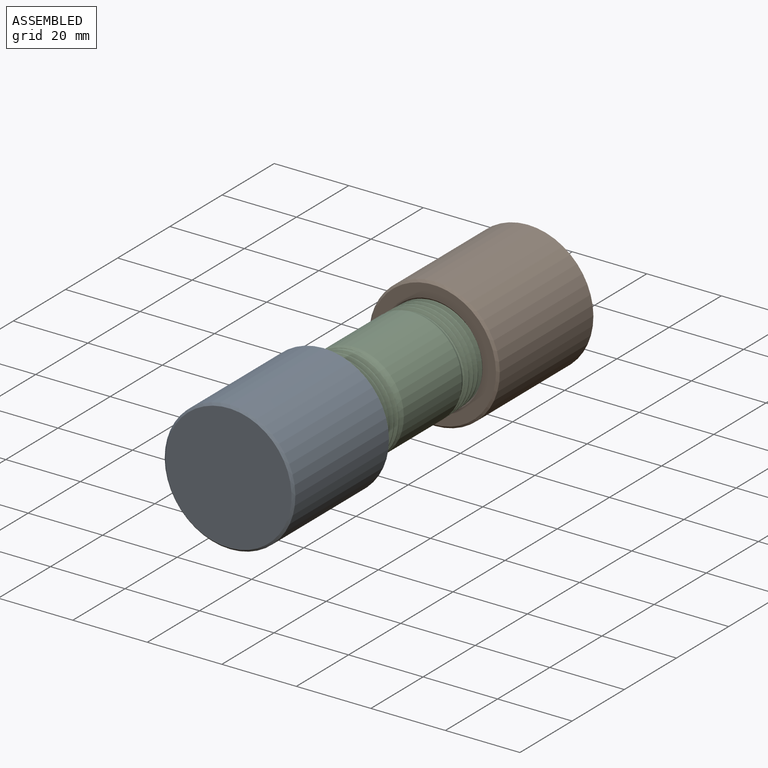
[diagram: assembled view]
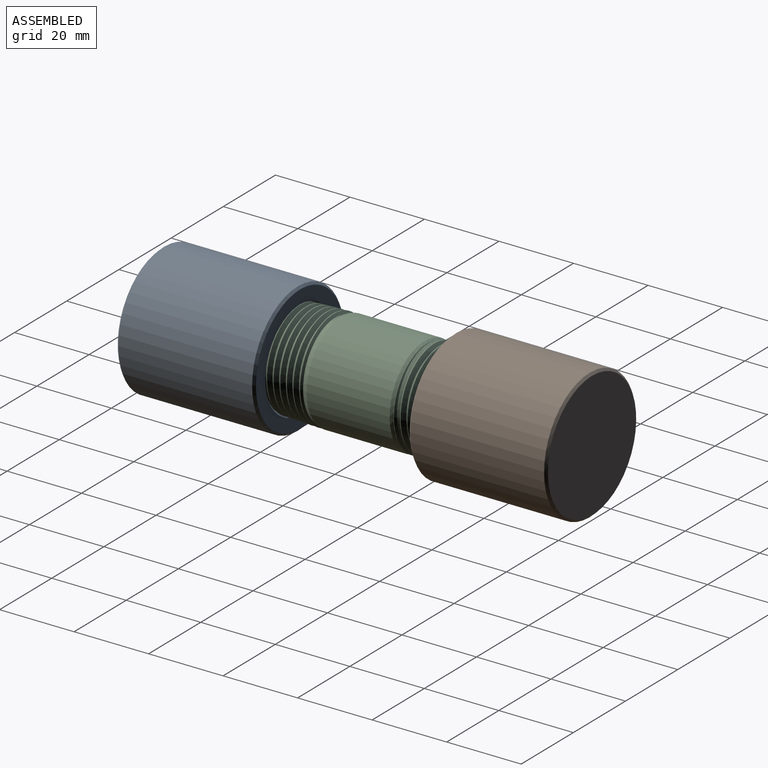
[diagram: assembled view, second angle]
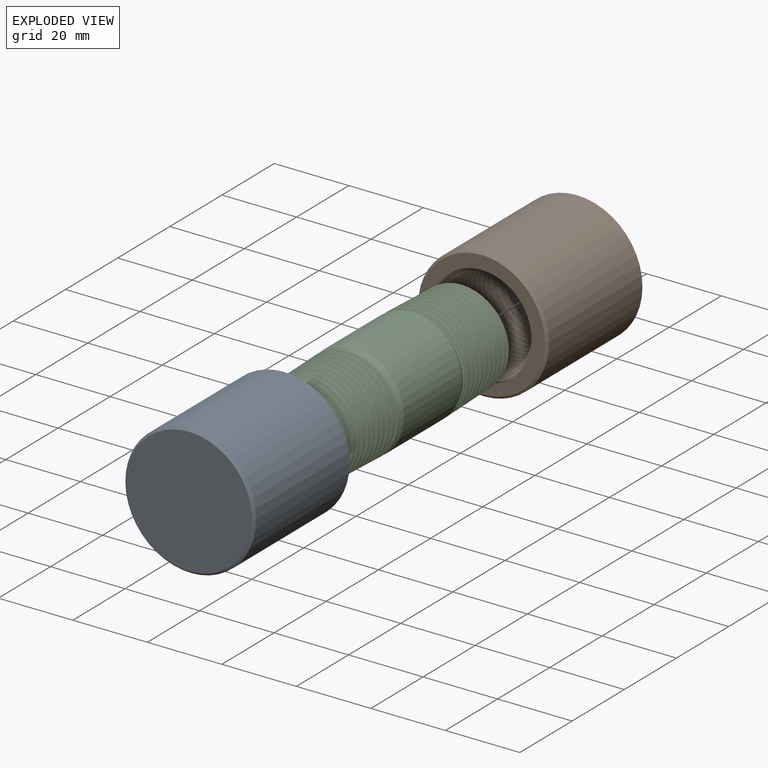
[diagram: exploded view]
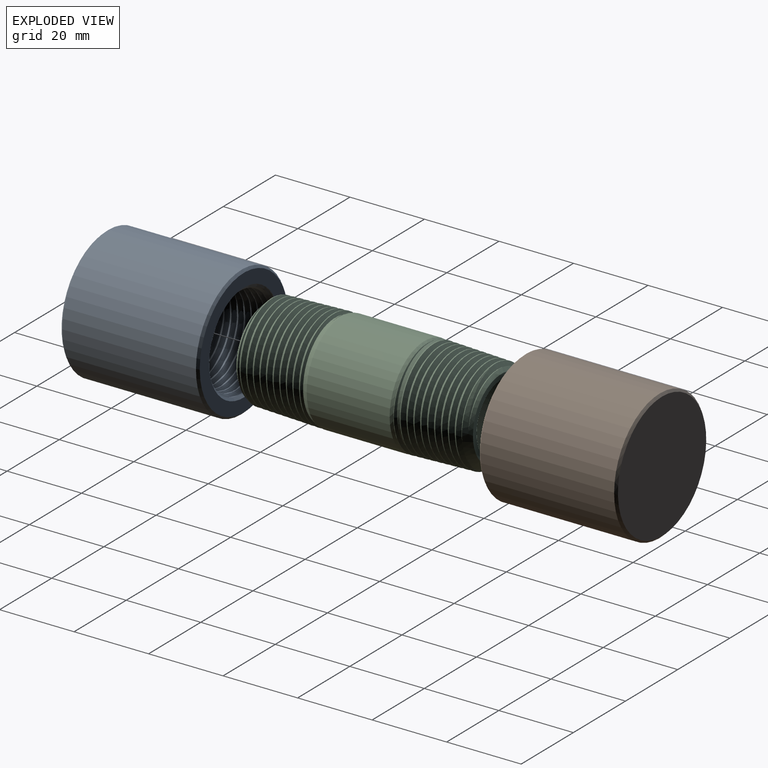
[diagram: exploded view, second angle]
ASSEMBLY  parts=3 mates=4
PART A: 14 faces, bbox 35.1x37.9x35.1 mm
  f0: cylinder r=10.64mm len=21.27mm, axis (0,1,0), area 121.2mm2, adj f1,f13
  f1: cone r=10.64mm half-angle=45deg, axis (0,-1,0), area 131.4mm2, adj f0,f6,f7,f8,f9,f10
  f2: cone r=16.92mm half-angle=45deg, axis (0,1,0), area 92.6mm2, adj f5,f11
  f3: cone r=17.53mm half-angle=45deg, axis (0,-1,0), area 92.6mm2, adj f5,f12
  f4: cone r=13.33mm half-angle=45deg, axis (0,-1,0), area 70.1mm2, adj f7,f8,f9,f10,f11
  f5: cylinder r=17.53mm len=35.87mm, axis (0,-1,0), area 3950.5mm2, adj f2,f3
  f6: cone r=12.45mm half-angle=1.5deg, axis (0,-1,0), area 253.8mm2, adj f1,f7,f9,f11
  f7: bspline ~30.39x26.94mm, area 34.4mm2, adj f1,f4,f6,f10
  f8: bspline ~30.77x24.51mm, area 277.1mm2, adj f1,f4,f9,f10
  f9: bspline ~35.07x33.18mm, area 2996.8mm2, adj f1,f4,f6,f8
  f10: bspline ~31.5x26.89mm, area 1747.1mm2, adj f1,f4,f7,f8
  f11: plane 33.84x33.84mm, normal (0,-1,0), area 340.9mm2, adj f2,f4,f6
  f12: plane 33.84x33.84mm, normal (0,1,0), area 899.5mm2, adj f3
  f13: plane 21.27x21.27mm, normal (0,-1,0), area 355.4mm2, adj f0
PART B: same geometry as A
PART C: 18 faces, bbox 63.6x27.5x27.5 mm
  f0: cylinder r=9.42mm len=63.5mm, axis (1,0,0), area 3759.8mm2, adj f13,f17
  f1: cone r=13.33mm half-angle=25deg, axis (1,0,0), area 132.3mm2, adj f4,f5,f14,f15,f16
  f2: cone r=10.83mm half-angle=46.8deg, axis (1,0,0), area 134mm2, adj f3,f14,f15,f16,f17
  f3: cone r=13.33mm half-angle=1.8deg, axis (1,0,0), area 187.6mm2, adj f2,f4,f14,f15
  f4: cone r=12.67mm half-angle=45deg, axis (-1,0,0), area 9.7mm2, adj f1,f3,f14,f15
  f5: cylinder r=13.33mm len=26.67mm, axis (1,0,0), area 1867mm2, adj f1,f6
  f6: cone r=13.33mm half-angle=25deg, axis (-1,0,0), area 132.3mm2, adj f5,f9,f10,f11,f12
  f7: cone r=10.83mm half-angle=46.8deg, axis (-1,0,0), area 134mm2, adj f8,f10,f11,f12,f13
  f8: cone r=13.33mm half-angle=1.8deg, axis (-1,0,0), area 187.6mm2, adj f7,f9,f10,f11
  f9: cone r=12.67mm half-angle=45deg, axis (1,0,0), area 9.7mm2, adj f6,f8,f10,f11
  f10: bspline ~27.55x27.49mm, area 1053mm2, adj f6,f7,f8,f9,f12
  f11: bspline ~26.48x26.44mm, area 3.5mm2, adj f6,f7,f8,f9,f12
  f12: bspline ~23.76x23.62mm, area 160.7mm2, adj f6,f7,f10,f11
  f13: plane 21.67x21.67mm, normal (1,0,0), area 89.8mm2, adj f0,f7
  f14: bspline ~27.55x27.49mm, area 1053mm2, adj f1,f2,f3,f4,f16
  f15: bspline ~26.48x26.44mm, area 3.5mm2, adj f1,f2,f3,f4,f16
  f16: bspline ~23.76x23.62mm, area 160.7mm2, adj f1,f2,f14,f15
  f17: plane 21.67x21.67mm, normal (-1,0,0), area 89.8mm2, adj f0,f2
PLACE A rot(axis=(-0.48,0,-0.88),180deg) t=(9.45,-16.73,11.97)mm
PLACE B rot(axis=(0,1,0),146.8deg) t=(9.45,24.54,11.97)mm
PLACE C rot(axis=(0.58,0.58,0.58),120deg) t=(9.45,5.49,11.97)mm fixed
MATE cylindrical B.f0 <-> C.f0  axis (0,-1,0) through (9.45,25.14,11.97)mm
MATE planar A.f0 <-> C.f0  axis (0,1,0) through (9.45,-16.73,11.97)mm
MATE cylindrical C.f0 <-> A.f0  axis (0,1,0) through (9.45,-4.81,11.97)mm
MATE planar B.f0 <-> C.f0  axis (0,-1,0) through (9.45,24.54,11.97)mm
